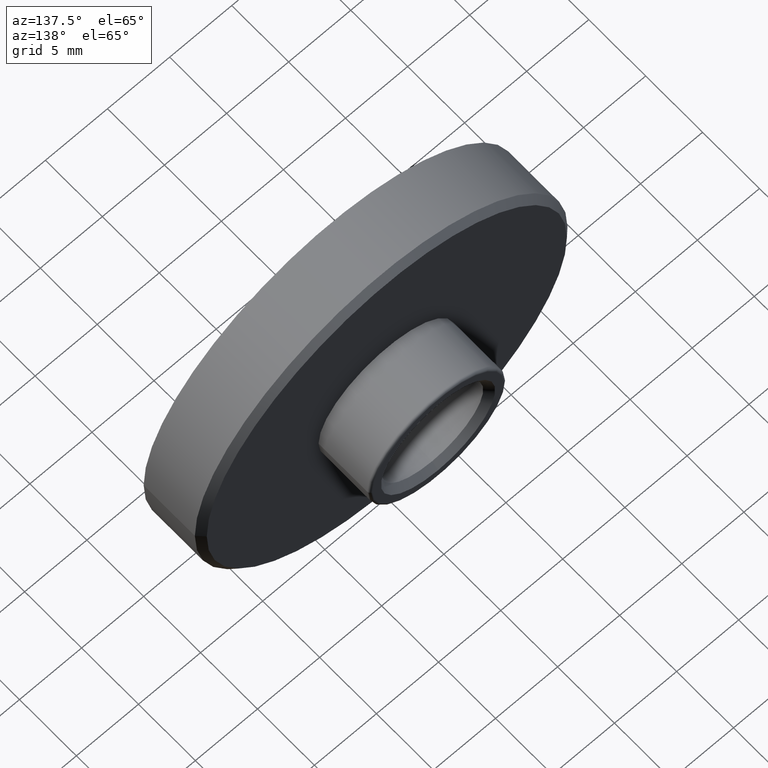
[diagram: clean part render]
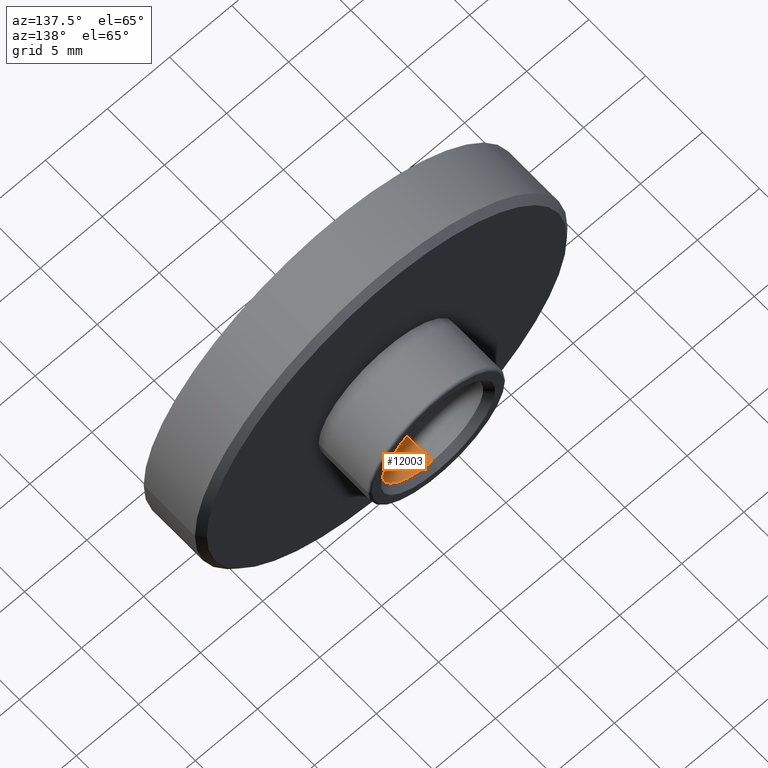
[diagram: same view with one face highlighted and labeled with its STEP entity id]
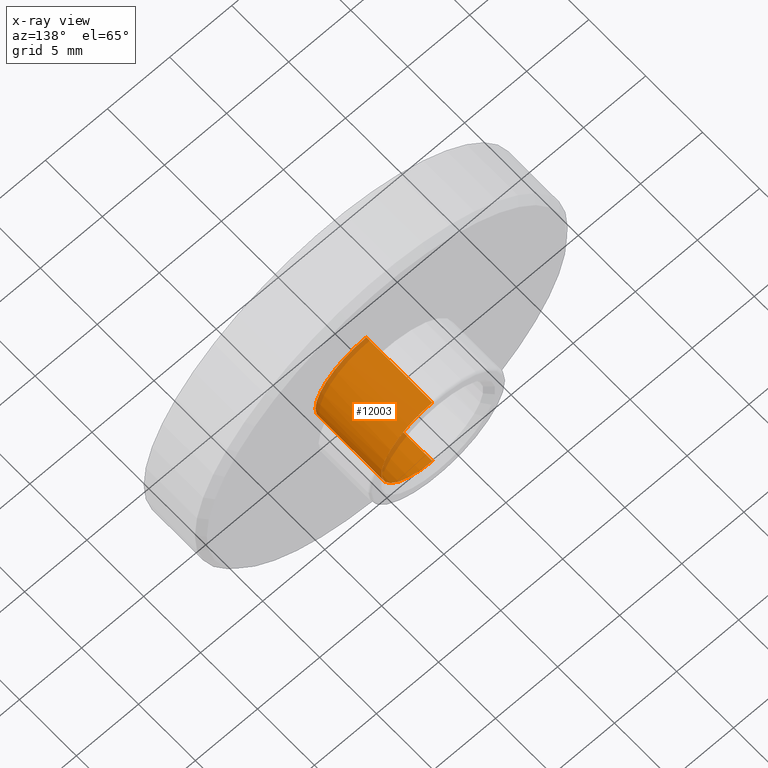
[diagram: x-ray of the same camera — body ghosted, the highlighted face saturated]
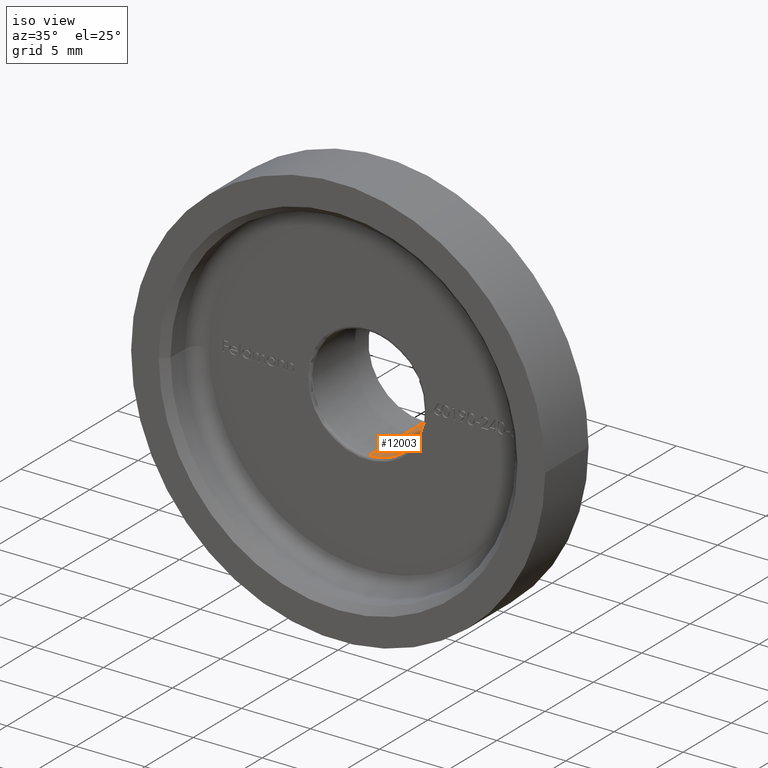
[diagram: same view with one face highlighted and labeled with its STEP entity id]
A machine part, auxiliary view. The second image highlights one B-rep face of the part: STEP entity #12003.
The next image is the same camera in x-ray: the body ghosted, the highlighted face saturated — about 6% of this face is hidden behind the body in this view.
A second angle (iso view) of the same face is appended — the face is thin or edge-on in the first view.
In plain terms, the highlighted cylindrical surface (partial cylindrical patch) has radius 4.1 mm, axis along (-0, 1, -0).
Its self-contained STEP definition (entity closure, byte-faithful):
#224 = CARTESIAN_POINT ( 'NONE',  ( -1.789868398753823338E-15, 3.199999999999998845, 4.099999999999999645 ) ) ;
#735 = DIRECTION ( 'NONE',  ( 0.000000000000000000, 0.000000000000000000, 1.000000000000000000 ) ) ;
#881 = ORIENTED_EDGE ( 'NONE', *, *, #6168, .T. ) ;
#947 = CARTESIAN_POINT ( 'NONE',  ( -1.287763211103408797E-15, 9.000000000000001776, -4.099999999999999645 ) ) ;
#1126 = ORIENTED_EDGE ( 'NONE', *, *, #2455, .T. ) ;
#1248 = AXIS2_PLACEMENT_3D ( 'NONE', #2068, #3153, #6325 ) ;
#1441 = CIRCLE ( 'NONE', #11127, 4.099999999999999645 ) ;
#1619 = CARTESIAN_POINT ( 'NONE',  ( -1.789868398753823338E-15, 0.000000000000000000, 4.099999999999999645 ) ) ;
#1781 = DIRECTION ( 'NONE',  ( 0.000000000000000000, 1.000000000000000000, 0.000000000000000000 ) ) ;
#1804 = CARTESIAN_POINT ( 'NONE',  ( -1.789868398753823338E-15, 3.199999999999998845, 0.000000000000000000 ) ) ;
#2068 = CARTESIAN_POINT ( 'NONE',  ( -1.789868398753823338E-15, 3.199999999999998845, 0.000000000000000000 ) ) ;
#2455 = EDGE_CURVE ( 'NONE', #5214, #5489, #9893, .T. ) ;
#2814 = DIRECTION ( 'NONE',  ( 1.884071998688235002E-16, -1.000000000000000000, -0.000000000000000000 ) ) ;
#2978 = CARTESIAN_POINT ( 'NONE',  ( -1.287763211103408599E-15, 3.199999999999998845, -4.099999999999999645 ) ) ;
#3153 = DIRECTION ( 'NONE',  ( 1.884071998688235002E-16, -1.000000000000000000, -0.000000000000000000 ) ) ;
#3522 = CIRCLE ( 'NONE', #1248, 4.099999999999999645 ) ;
#4059 = EDGE_CURVE ( 'NONE', #5489, #13478, #3522, .T. ) ;
#4218 = CARTESIAN_POINT ( 'NONE',  ( 4.099999999999997868, 3.199999999999999734, 0.000000000000000000 ) ) ;
#4628 = LINE ( 'NONE', #13463, #7369 ) ;
#5139 = CARTESIAN_POINT ( 'NONE',  ( -1.789868398753823338E-15, 0.000000000000000000, 0.000000000000000000 ) ) ;
#5214 = VERTEX_POINT ( 'NONE', #2978 ) ;
#5489 = VERTEX_POINT ( 'NONE', #4218 ) ;
#6168 = EDGE_CURVE ( 'NONE', #13725, #8200, #1441, .T. ) ;
#6171 = CARTESIAN_POINT ( 'NONE',  ( -1.789868398753823338E-15, 9.000000000000001776, 0.000000000000000000 ) ) ;
#6325 = DIRECTION ( 'NONE',  ( 1.000000000000000000, 2.115516434118057709E-16, 0.000000000000000000 ) ) ;
#6499 = CYLINDRICAL_SURFACE ( 'NONE', #13780, 4.099999999999999645 ) ;
#7332 = DIRECTION ( 'NONE',  ( -0.000000000000000000, 1.000000000000000000, -0.000000000000000000 ) ) ;
#7346 = FACE_OUTER_BOUND ( 'NONE', #10666, .T. ) ;
#7369 = VECTOR ( 'NONE', #13514, 1000.000000000000000 ) ;
#7776 = ORIENTED_EDGE ( 'NONE', *, *, #8080, .T. ) ;
#8080 = EDGE_CURVE ( 'NONE', #13478, #13725, #12889, .T. ) ;
#8199 = DIRECTION ( 'NONE',  ( 1.000000000000000000, 2.115516434118057709E-16, 0.000000000000000000 ) ) ;
#8200 = VERTEX_POINT ( 'NONE', #947 ) ;
#9358 = DIRECTION ( 'NONE',  ( -0.000000000000000000, 1.000000000000000000, -0.000000000000000000 ) ) ;
#9555 = DIRECTION ( 'NONE',  ( 0.000000000000000000, 0.000000000000000000, 1.000000000000000000 ) ) ;
#9849 = AXIS2_PLACEMENT_3D ( 'NONE', #1804, #2814, #8199 ) ;
#9893 = CIRCLE ( 'NONE', #9849, 4.099999999999999645 ) ;
#10666 = EDGE_LOOP ( 'NONE', ( #11445, #1126, #10789, #7776, #881 ) ) ;
#10764 = EDGE_CURVE ( 'NONE', #5214, #8200, #4628, .T. ) ;
#10789 = ORIENTED_EDGE ( 'NONE', *, *, #4059, .T. ) ;
#11127 = AXIS2_PLACEMENT_3D ( 'NONE', #6171, #1781, #735 ) ;
#11445 = ORIENTED_EDGE ( 'NONE', *, *, #10764, .F. ) ;
#12003 = ADVANCED_FACE ( 'NONE', ( #7346 ), #6499, .F. ) ;
#12208 = VECTOR ( 'NONE', #9358, 1000.000000000000000 ) ;
#12632 = CARTESIAN_POINT ( 'NONE',  ( -1.789868398753823338E-15, 9.000000000000001776, 4.099999999999999645 ) ) ;
#12889 = LINE ( 'NONE', #1619, #12208 ) ;
#13463 = CARTESIAN_POINT ( 'NONE',  ( -1.287763211103408797E-15, 0.000000000000000000, -4.099999999999999645 ) ) ;
#13478 = VERTEX_POINT ( 'NONE', #224 ) ;
#13514 = DIRECTION ( 'NONE',  ( -0.000000000000000000, 1.000000000000000000, -0.000000000000000000 ) ) ;
#13725 = VERTEX_POINT ( 'NONE', #12632 ) ;
#13780 = AXIS2_PLACEMENT_3D ( 'NONE', #5139, #7332, #9555 ) ;